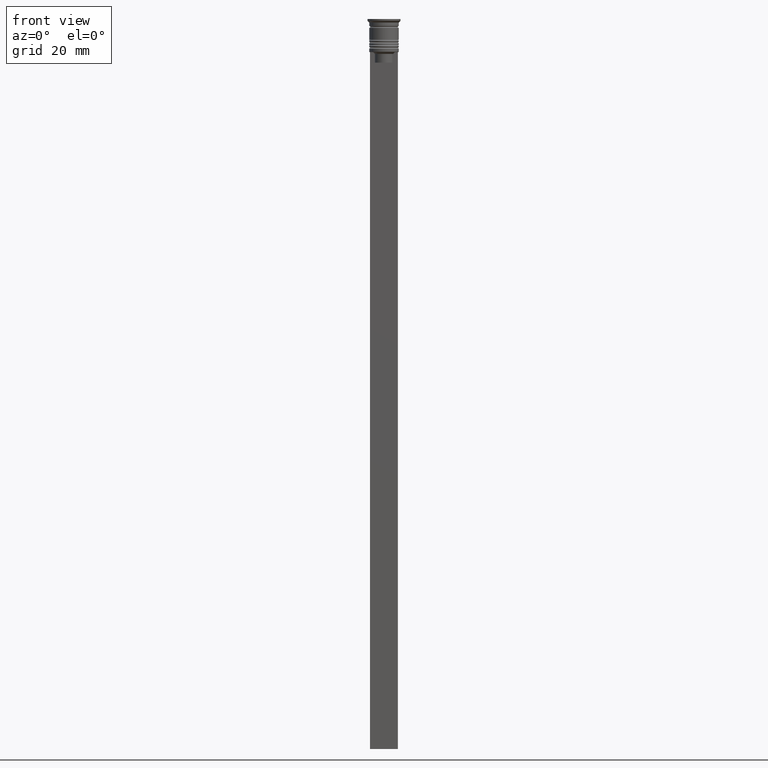
[diagram: clean part render]
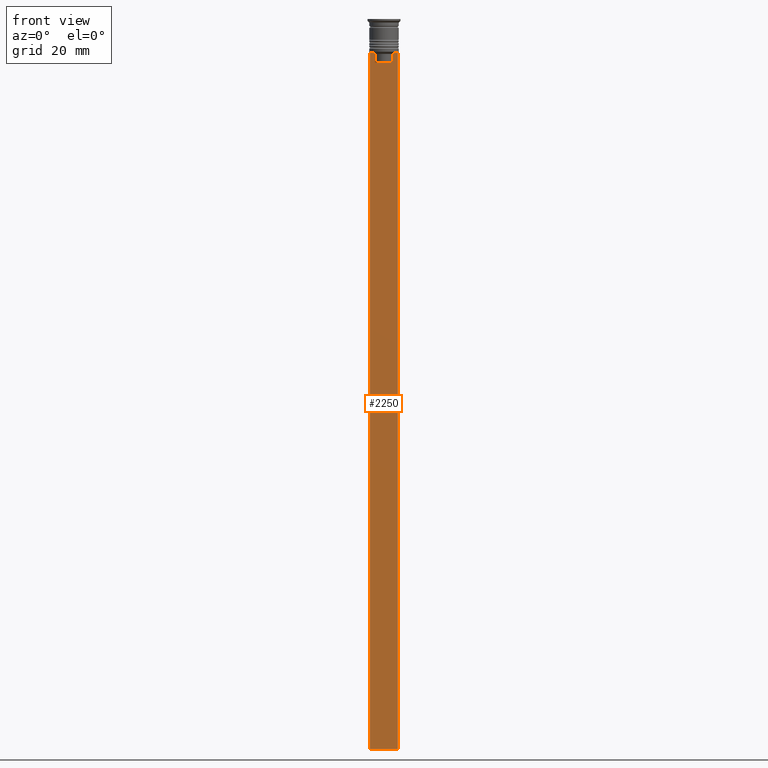
[diagram: same view with one face highlighted and labeled with its STEP entity id]
A machine part, front view. The second image highlights one B-rep face of the part: STEP entity #2250.
In plain terms, the highlighted planar face has unit normal (0, -1, -0).
Its self-contained STEP definition (entity closure, byte-faithful):
#20 = CARTESIAN_POINT ( 'NONE',  ( 4.000000000000005329, -0.5000000000000004441, -9.500000000000000000 ) ) ;
#22 = VERTEX_POINT ( 'NONE', #159 ) ;
#24 = CARTESIAN_POINT ( 'NONE',  ( 2.602402735934616906, -0.5000000000000004441, -12.50000000000000000 ) ) ;
#30 = EDGE_CURVE ( 'NONE', #22, #2100, #1137, .T. ) ;
#47 = ORIENTED_EDGE ( 'NONE', *, *, #1020, .F. ) ;
#67 = VERTEX_POINT ( 'NONE', #20 ) ;
#159 = CARTESIAN_POINT ( 'NONE',  ( -2.602402735934616906, -0.5000000000000004441, -12.50000000000000000 ) ) ;
#173 = CARTESIAN_POINT ( 'NONE',  ( 3.110064308016796453, -0.5000000000000004441, -9.500000000000000000 ) ) ;
#175 = FACE_OUTER_BOUND ( 'NONE', #240, .T. ) ;
#201 = EDGE_CURVE ( 'NONE', #1725, #334, #1335, .T. ) ;
#206 = CARTESIAN_POINT ( 'NONE',  ( -3.999999999999994671, -0.5000000000000004441, -9.500000000000000000 ) ) ;
#240 = EDGE_LOOP ( 'NONE', ( #1815, #413, #1498, #956, #454, #1824, #606, #1302, #1225, #47 ) ) ;
#248 = VECTOR ( 'NONE', #696, 1000.000000000000000 ) ;
#334 = VERTEX_POINT ( 'NONE', #1176 ) ;
#393 = CARTESIAN_POINT ( 'NONE',  ( -2.602402735934616906, -0.5000000000000004441, -10.00000000000000178 ) ) ;
#404 = EDGE_CURVE ( 'NONE', #836, #1251, #1772, .T. ) ;
#413 = ORIENTED_EDGE ( 'NONE', *, *, #201, .F. ) ;
#454 = ORIENTED_EDGE ( 'NONE', *, *, #2119, .F. ) ;
#464 = CARTESIAN_POINT ( 'NONE',  ( -3.999999999999994671, -0.5000000000000004441, -209.5000000000000284 ) ) ;
#479 = DIRECTION ( 'NONE',  ( -1.000000000000000000, 0.000000000000000000, 0.000000000000000000 ) ) ;
#561 = VECTOR ( 'NONE', #479, 1000.000000000000000 ) ;
#606 = ORIENTED_EDGE ( 'NONE', *, *, #2075, .F. ) ;
#690 = EDGE_CURVE ( 'NONE', #334, #1073, #1556, .T. ) ;
#696 = DIRECTION ( 'NONE',  ( 0.000000000000000000, 0.000000000000000000, -1.000000000000000000 ) ) ;
#698 = DIRECTION ( 'NONE',  ( 0.000000000000000000, 0.000000000000000000, -1.000000000000000000 ) ) ;
#699 = VECTOR ( 'NONE', #2150, 1000.000000000000000 ) ;
#736 = CARTESIAN_POINT ( 'NONE',  ( 2.602402735934616906, -0.5000000000000004441, -10.00000000000000178 ) ) ;
#738 = VECTOR ( 'NONE', #1308, 1000.000000000000000 ) ;
#744 = DIRECTION ( 'NONE',  ( 0.000000000000000000, 0.000000000000000000, -1.000000000000000000 ) ) ;
#771 = CARTESIAN_POINT ( 'NONE',  ( -2.602402735934616906, -0.5000000000000004441, -10.00000000000000178 ) ) ;
#787 = CARTESIAN_POINT ( 'NONE',  ( 0.000000000000000000, -0.5000000000000004441, -12.50000000000000000 ) ) ;
#817 = CARTESIAN_POINT ( 'NONE',  ( 4.000000000000005329, -0.5000000000000004441, -209.5000000000000284 ) ) ;
#836 = VERTEX_POINT ( 'NONE', #1569 ) ;
#871 = CARTESIAN_POINT ( 'NONE',  ( 2.602402735934616906, -0.5000000000000004441, -10.00000000000000178 ) ) ;
#956 = ORIENTED_EDGE ( 'NONE', *, *, #404, .F. ) ;
#960 = DIRECTION ( 'NONE',  ( -0.000000000000000000, -0.000000000000000000, 1.000000000000000000 ) ) ;
#968 = VERTEX_POINT ( 'NONE', #1656 ) ;
#1020 = EDGE_CURVE ( 'NONE', #1073, #22, #1329, .T. ) ;
#1049 = VECTOR ( 'NONE', #1696, 1000.000000000000000 ) ;
#1054 = EDGE_CURVE ( 'NONE', #1725, #1251, #1484, .T. ) ;
#1073 = VERTEX_POINT ( 'NONE', #771 ) ;
#1127 = CARTESIAN_POINT ( 'NONE',  ( -2.771866350855961336, -0.5000000000000004441, -9.833580160334840059 ) ) ;
#1137 = LINE ( 'NONE', #787, #1239 ) ;
#1176 = CARTESIAN_POINT ( 'NONE',  ( -3.110064308016796453, -0.5000000000000004441, -9.500000000000000000 ) ) ;
#1197 = VECTOR ( 'NONE', #960, 1000.000000000000000 ) ;
#1225 = ORIENTED_EDGE ( 'NONE', *, *, #30, .F. ) ;
#1239 = VECTOR ( 'NONE', #2072, 1000.000000000000000 ) ;
#1251 = VERTEX_POINT ( 'NONE', #464 ) ;
#1275 = B_SPLINE_CURVE_WITH_KNOTS ( 'NONE', 3,
 ( #736, #2370, #1983, #173 ),
 .UNSPECIFIED., .F., .F.,
 ( 4, 4 ),
 ( 0.01295151922336847811, 0.01367164596165162602 ),
 .UNSPECIFIED. ) ;
#1281 = CARTESIAN_POINT ( 'NONE',  ( 4.000000000000005329, -0.5000000000000004441, -1.437742251701450202 ) ) ;
#1302 = ORIENTED_EDGE ( 'NONE', *, *, #1844, .F. ) ;
#1308 = DIRECTION ( 'NONE',  ( 0.000000000000000000, 0.000000000000000000, -1.000000000000000000 ) ) ;
#1312 = CARTESIAN_POINT ( 'NONE',  ( 2.602402735934616906, -0.5000000000000004441, 0.000000000000000000 ) ) ;
#1323 = CARTESIAN_POINT ( 'NONE',  ( -3.110064308016796453, -0.5000000000000004441, -9.500000000000000000 ) ) ;
#1329 = LINE ( 'NONE', #2050, #1385 ) ;
#1335 = LINE ( 'NONE', #1902, #1049 ) ;
#1384 = CARTESIAN_POINT ( 'NONE',  ( 4.000000000000005329, -0.5000000000000004441, -9.500000000000000000 ) ) ;
#1385 = VECTOR ( 'NONE', #744, 1000.000000000000000 ) ;
#1484 = LINE ( 'NONE', #2230, #738 ) ;
#1498 = ORIENTED_EDGE ( 'NONE', *, *, #1054, .T. ) ;
#1556 = B_SPLINE_CURVE_WITH_KNOTS ( 'NONE', 3,
 ( #1323, #1703, #1127, #393 ),
 .UNSPECIFIED., .F., .F.,
 ( 4, 4 ),
 ( 0.005378271293598281544, 0.006090816219556000749 ),
 .UNSPECIFIED. ) ;
#1569 = CARTESIAN_POINT ( 'NONE',  ( 4.000000000000005329, -0.5000000000000004441, -209.5000000000000284 ) ) ;
#1573 = EDGE_CURVE ( 'NONE', #968, #67, #1952, .T. ) ;
#1617 = CARTESIAN_POINT ( 'NONE',  ( 4.000000000000005329, -0.5000000000000004441, -1.437742251701450202 ) ) ;
#1656 = CARTESIAN_POINT ( 'NONE',  ( 3.110064308016796453, -0.5000000000000004441, -9.500000000000000000 ) ) ;
#1696 = DIRECTION ( 'NONE',  ( 1.000000000000000000, 0.000000000000000000, 0.000000000000000000 ) ) ;
#1703 = CARTESIAN_POINT ( 'NONE',  ( -2.941047749529104749, -0.5000000000000004441, -9.666873766989334982 ) ) ;
#1721 = VERTEX_POINT ( 'NONE', #871 ) ;
#1725 = VERTEX_POINT ( 'NONE', #206 ) ;
#1772 = LINE ( 'NONE', #817, #561 ) ;
#1812 = LINE ( 'NONE', #1617, #248 ) ;
#1815 = ORIENTED_EDGE ( 'NONE', *, *, #690, .F. ) ;
#1824 = ORIENTED_EDGE ( 'NONE', *, *, #1573, .F. ) ;
#1844 = EDGE_CURVE ( 'NONE', #2100, #1721, #2088, .T. ) ;
#1902 = CARTESIAN_POINT ( 'NONE',  ( 4.000000000000005329, -0.5000000000000004441, -9.500000000000000000 ) ) ;
#1952 = LINE ( 'NONE', #1384, #699 ) ;
#1983 = CARTESIAN_POINT ( 'NONE',  ( 2.941045828809988549, -0.5000000000000004441, -9.666875663357577864 ) ) ;
#2050 = CARTESIAN_POINT ( 'NONE',  ( -2.602402735934616906, -0.5000000000000004441, 0.000000000000000000 ) ) ;
#2072 = DIRECTION ( 'NONE',  ( 1.000000000000000000, 0.000000000000000000, 0.000000000000000000 ) ) ;
#2075 = EDGE_CURVE ( 'NONE', #1721, #968, #1275, .T. ) ;
#2088 = LINE ( 'NONE', #1312, #1197 ) ;
#2100 = VERTEX_POINT ( 'NONE', #24 ) ;
#2119 = EDGE_CURVE ( 'NONE', #67, #836, #1812, .T. ) ;
#2150 = DIRECTION ( 'NONE',  ( 1.000000000000000000, 0.000000000000000000, 0.000000000000000000 ) ) ;
#2194 = DIRECTION ( 'NONE',  ( 0.000000000000000000, -1.000000000000000000, -0.000000000000000000 ) ) ;
#2230 = CARTESIAN_POINT ( 'NONE',  ( -3.999999999999994671, -0.5000000000000004441, -1.437742251701450202 ) ) ;
#2250 = ADVANCED_FACE ( 'NONE', ( #175 ), #2371, .T. ) ;
#2362 = AXIS2_PLACEMENT_3D ( 'NONE', #1281, #2194, #698 ) ;
#2370 = CARTESIAN_POINT ( 'NONE',  ( 2.771864055700302476, -0.5000000000000004441, -9.833582414266679450 ) ) ;
#2371 = PLANE ( 'NONE',  #2362 ) ;